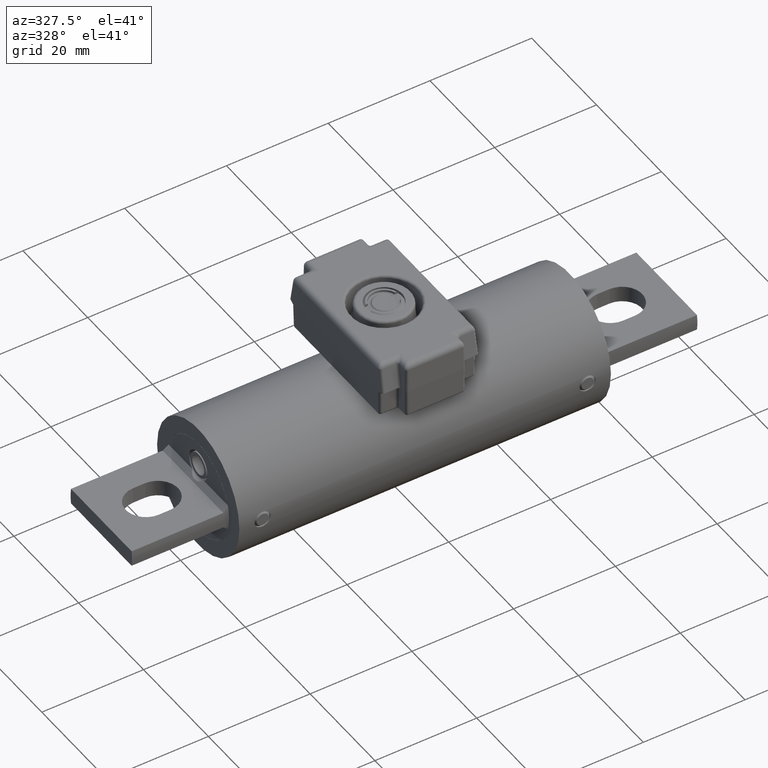
[diagram: clean part render]
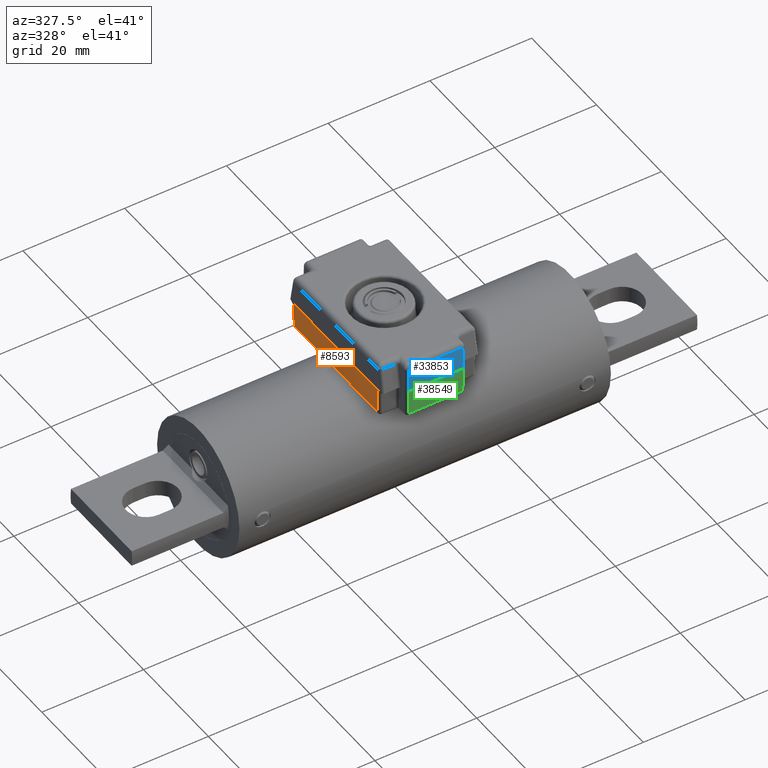
[diagram: same view with three faces highlighted in distinct colors, each labeled with its STEP entity id]
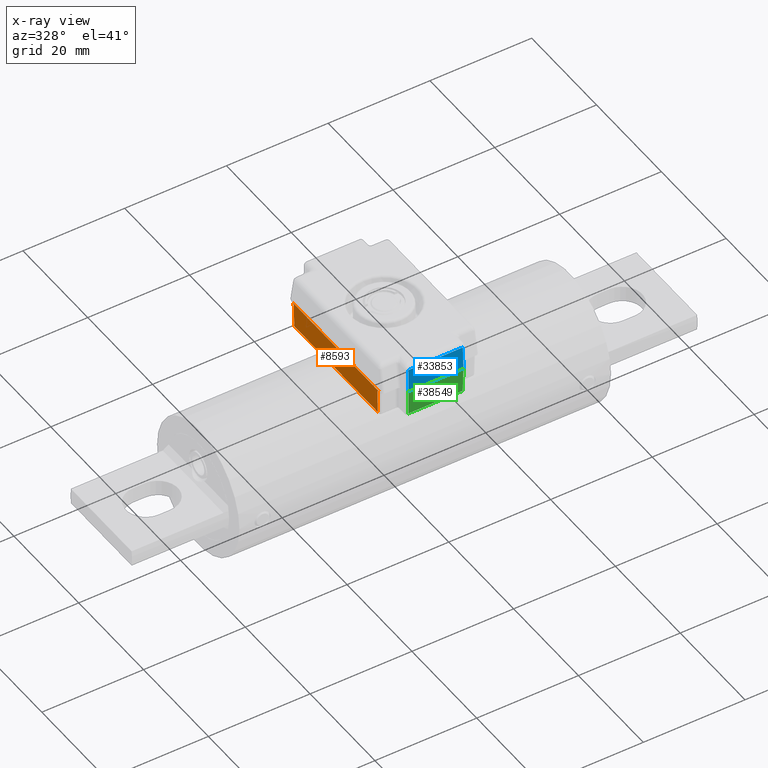
[diagram: x-ray of the same camera — body ghosted, the three highlighted faces saturated]
A machine part, auxiliary view with three faces highlighted in distinct colors.
The next image is the same camera in x-ray (body ghosted, the three faces saturated) — at least one of them is partly hidden behind the body in this view.
Their STEP definitions:

[orange] entity #8593 — the highlighted planar face has unit normal (-0.9998, 0, -0.0175).
#886 = EDGE_LOOP ( 'NONE', ( #25559, #22007, #8837, #33350, #26695, #16284 ) ) ;
#974 = DIRECTION ( 'NONE',  ( 0.01745240643728355000, 5.064918043239283100E-017, -0.9998476951563912700 ) ) ;
#1971 = DIRECTION ( 'NONE',  ( -0.01744974916068272500, -0.01744974916068281500, 0.9996954598818874600 ) ) ;
#2559 = CARTESIAN_POINT ( 'NONE',  ( -0.3665224329109190200, 0.2660506057940360000, 0.2569654875597571800 ) ) ;
#2830 = CARTESIAN_POINT ( 'NONE',  ( -0.3711076247461754800, -0.5062676622022337400, 0.5196509518712542100 ) ) ;
#2939 = LINE ( 'NONE', #2830, #26684 ) ;
#3385 = VECTOR ( 'NONE', #18103, 39.37007874015748900 ) ;
#3974 = VERTEX_POINT ( 'NONE', #37888 ) ;
#4573 = VERTEX_POINT ( 'NONE', #29633 ) ;
#5062 = CARTESIAN_POINT ( 'NONE',  ( -0.3741833255768810000, -0.5096863716737531900, 0.6958577344500682700 ) ) ;
#5782 = LINE ( 'NONE', #12609, #22310 ) ;
#5899 = DIRECTION ( 'NONE',  ( -4.064165105744147800E-016, -1.000000000000000000, -5.550164946788219100E-017 ) ) ;
#8593 = ADVANCED_FACE ( 'NONE', ( #17112 ), #37894, .T. ) ;
#8837 = ORIENTED_EDGE ( 'NONE', *, *, #20443, .T. ) ;
#11049 = EDGE_CURVE ( 'NONE', #4573, #17977, #12136, .T. ) ;
#11390 = EDGE_CURVE ( 'NONE', #24192, #38937, #11565, .T. ) ;
#11565 = LINE ( 'NONE', #2559, #3385 ) ;
#12136 = LINE ( 'NONE', #39785, #35929 ) ;
#12609 = CARTESIAN_POINT ( 'NONE',  ( -0.3744999999999996700, 0.5300000000000001400, 0.7139999999999999700 ) ) ;
#13678 = CARTESIAN_POINT ( 'NONE',  ( -0.3745000000000000600, -0.5255563905649274200, 0.7139999999999999700 ) ) ;
#14436 = CARTESIAN_POINT ( 'NONE',  ( -0.3743416625967335200, 0.5098447086936062100, 0.7049288562421708300 ) ) ;
#15133 = CARTESIAN_POINT ( 'NONE',  ( -0.3745060889473976200, 0.5100091350442702600, 0.7143488355628013800 ) ) ;
#15610 = EDGE_CURVE ( 'NONE', #4573, #38937, #5782, .T. ) ;
#15729 = AXIS2_PLACEMENT_3D ( 'NONE', #38149, #19497, #974 ) ;
#16284 = ORIENTED_EDGE ( 'NONE', *, *, #11390, .T. ) ;
#17112 = FACE_OUTER_BOUND ( 'NONE', #886, .T. ) ;
#17977 = VERTEX_POINT ( 'NONE', #14436 ) ;
#18103 = DIRECTION ( 'NONE',  ( -0.008727200095795303200, -0.8659924231676986400, 0.4999809586320516100 ) ) ;
#19497 = DIRECTION ( 'NONE',  ( -0.9998476951563912700, 4.073232487157848200E-016, -0.01745240643728355000 ) ) ;
#19585 = LINE ( 'NONE', #5062, #25930 ) ;
#20443 = EDGE_CURVE ( 'NONE', #17977, #21078, #40006, .T. ) ;
#21078 = VERTEX_POINT ( 'NONE', #24015 ) ;
#21129 = DIRECTION ( 'NONE',  ( 0.008727200095794565900, -0.8659924231676997500, -0.4999809586320498900 ) ) ;
#21529 = CARTESIAN_POINT ( 'NONE',  ( -0.3743416625967339000, -0.5098447086936061000, 0.7049288562421708300 ) ) ;
#22007 = ORIENTED_EDGE ( 'NONE', *, *, #11049, .T. ) ;
#22310 = VECTOR ( 'NONE', #34203, 39.37007874015748100 ) ;
#22820 = EDGE_CURVE ( 'NONE', #3974, #24192, #19585, .T. ) ;
#24015 = CARTESIAN_POINT ( 'NONE',  ( -0.3711076247461750900, 0.5066106708430477800, 0.5196509518712543200 ) ) ;
#24192 = VERTEX_POINT ( 'NONE', #21529 ) ;
#25559 = ORIENTED_EDGE ( 'NONE', *, *, #15610, .F. ) ;
#25711 = EDGE_CURVE ( 'NONE', #21078, #3974, #2939, .T. ) ;
#25930 = VECTOR ( 'NONE', #1971, 39.37007874015748900 ) ;
#26684 = VECTOR ( 'NONE', #5899, 39.37007874015748100 ) ;
#26695 = ORIENTED_EDGE ( 'NONE', *, *, #22820, .T. ) ;
#29633 = CARTESIAN_POINT ( 'NONE',  ( -0.3744999999999996700, 0.5255563905649275300, 0.7139999999999999700 ) ) ;
#31733 = VECTOR ( 'NONE', #36887, 39.37007874015748900 ) ;
#33350 = ORIENTED_EDGE ( 'NONE', *, *, #25711, .T. ) ;
#34203 = DIRECTION ( 'NONE',  ( -4.064165105744147300E-016, -1.000000000000000000, -5.550164946788219100E-017 ) ) ;
#35929 = VECTOR ( 'NONE', #21129, 39.37007874015748900 ) ;
#36887 = DIRECTION ( 'NONE',  ( 0.01744974916068271400, -0.01744974916068264800, -0.9996954598818874600 ) ) ;
#37888 = CARTESIAN_POINT ( 'NONE',  ( -0.3711076247461754800, -0.5066106708430476700, 0.5196509518712542100 ) ) ;
#37894 = PLANE ( 'NONE',  #15729 ) ;
#38149 = CARTESIAN_POINT ( 'NONE',  ( -0.3744999999999996700, 0.5300000000000001400, 0.7139999999999999700 ) ) ;
#38937 = VERTEX_POINT ( 'NONE', #13678 ) ;
#39785 = CARTESIAN_POINT ( 'NONE',  ( -0.3745335834188513500, 0.5288888438088584800, 0.7159239927774453400 ) ) ;
#40006 = LINE ( 'NONE', #15133, #31733 ) ;

[blue] entity #33853 — the highlighted planar face has unit normal (0, -0.9998, 0.0175).
#2886 = ORIENTED_EDGE ( 'NONE', *, *, #14783, .T. ) ;
#2912 = VERTEX_POINT ( 'NONE', #3387 ) ;
#3387 = CARTESIAN_POINT ( 'NONE',  ( 0.2103489490942925000, -0.6268459029974199300, 0.8946980962574911900 ) ) ;
#3866 = VERTEX_POINT ( 'NONE', #17609 ) ;
#7024 = DIRECTION ( 'NONE',  ( -0.01744974916068272100, -0.01744974916068266600, -0.9996954598818874600 ) ) ;
#7520 = EDGE_CURVE ( 'NONE', #2912, #30694, #24718, .T. ) ;
#11934 = CARTESIAN_POINT ( 'NONE',  ( -0.2324999999999997300, -0.6299999999999997800, 0.7139999999999999700 ) ) ;
#12514 = CARTESIAN_POINT ( 'NONE',  ( -0.2086629318126640700, -0.6268459029974200500, 0.8946980962574911900 ) ) ;
#13490 = ORIENTED_EDGE ( 'NONE', *, *, #32296, .T. ) ;
#14783 = EDGE_CURVE ( 'NONE', #22739, #2912, #23438, .T. ) ;
#16366 = VECTOR ( 'NONE', #31261, 39.37007874015748100 ) ;
#16471 = DIRECTION ( 'NONE',  ( 1.555861134850301900E-017, -0.9998476951563912700, 0.01745240643728349400 ) ) ;
#17477 = EDGE_LOOP ( 'NONE', ( #2886, #32779, #13490, #31459 ) ) ;
#17609 = CARTESIAN_POINT ( 'NONE',  ( -0.2125030460968719300, -0.6299999999999997800, 0.7139999999999999700 ) ) ;
#20247 = CARTESIAN_POINT ( 'NONE',  ( 0.2133672409587411600, -0.6298641948618685100, 0.7217802711527964200 ) ) ;
#20381 = CARTESIAN_POINT ( 'NONE',  ( 0.2135030460968723500, -0.6299999999999996700, 0.7139999999999999700 ) ) ;
#20540 = LINE ( 'NONE', #31911, #36123 ) ;
#22739 = VERTEX_POINT ( 'NONE', #20381 ) ;
#23015 = LINE ( 'NONE', #11934, #39570 ) ;
#23438 = LINE ( 'NONE', #20247, #31738 ) ;
#24718 = LINE ( 'NONE', #12514, #16366 ) ;
#25307 = FACE_OUTER_BOUND ( 'NONE', #17477, .T. ) ;
#29092 = DIRECTION ( 'NONE',  ( -0.01744974916068281500, 0.01744974916068266200, 0.9996954598818874600 ) ) ;
#30322 = CARTESIAN_POINT ( 'NONE',  ( -0.2093489490942921100, -0.6268459029974200500, 0.8946980962574911900 ) ) ;
#30694 = VERTEX_POINT ( 'NONE', #30322 ) ;
#31261 = DIRECTION ( 'NONE',  ( -1.000000000000000000, -1.556098136133570800E-017, -1.384962516783418500E-030 ) ) ;
#31459 = ORIENTED_EDGE ( 'NONE', *, *, #39143, .T. ) ;
#31738 = VECTOR ( 'NONE', #29092, 39.37007874015748900 ) ;
#31911 = CARTESIAN_POINT ( 'NONE',  ( -0.2125091350442699100, -0.6300060889473978500, 0.7136511644371985600 ) ) ;
#32296 = EDGE_CURVE ( 'NONE', #30694, #3866, #20540, .T. ) ;
#32779 = ORIENTED_EDGE ( 'NONE', *, *, #7520, .T. ) ;
#33643 = DIRECTION ( 'NONE',  ( 1.000000000000000000, 1.556098136133565800E-017, 1.384449094911564700E-030 ) ) ;
#33853 = ADVANCED_FACE ( 'NONE', ( #25307 ), #34695, .T. ) ;
#34695 = PLANE ( 'NONE',  #39612 ) ;
#35089 = CARTESIAN_POINT ( 'NONE',  ( -0.2324999999999997300, -0.6299999999999997800, 0.7139999999999999700 ) ) ;
#36123 = VECTOR ( 'NONE', #7024, 39.37007874015748900 ) ;
#38229 = DIRECTION ( 'NONE',  ( -4.844015865445743100E-018, -0.01745240643728349400, -0.9998476951563912700 ) ) ;
#39143 = EDGE_CURVE ( 'NONE', #3866, #22739, #23015, .T. ) ;
#39570 = VECTOR ( 'NONE', #33643, 39.37007874015748100 ) ;
#39612 = AXIS2_PLACEMENT_3D ( 'NONE', #35089, #16471, #38229 ) ;

[green] entity #38549 — the highlighted planar face has unit normal (0, -0.9998, -0.0175).
#1256 = VERTEX_POINT ( 'NONE', #10184 ) ;
#2391 = EDGE_CURVE ( 'NONE', #13362, #1256, #40286, .T. ) ;
#3866 = VERTEX_POINT ( 'NONE', #17609 ) ;
#5852 = ORIENTED_EDGE ( 'NONE', *, *, #39143, .F. ) ;
#6925 = DIRECTION ( 'NONE',  ( 1.000000000000000000, 1.556098136133570800E-017, 1.383935673039711000E-030 ) ) ;
#7158 = VECTOR ( 'NONE', #6925, 39.37007874015748100 ) ;
#7505 = AXIS2_PLACEMENT_3D ( 'NONE', #32787, #14142, #35893 ) ;
#10184 = CARTESIAN_POINT ( 'NONE',  ( 0.2101106708430478500, -0.6266076247461751500, 0.5196509518712542100 ) ) ;
#11934 = CARTESIAN_POINT ( 'NONE',  ( -0.2324999999999997300, -0.6299999999999997800, 0.7139999999999999700 ) ) ;
#11938 = VECTOR ( 'NONE', #26458, 39.37007874015748900 ) ;
#13362 = VERTEX_POINT ( 'NONE', #23153 ) ;
#13689 = ORIENTED_EDGE ( 'NONE', *, *, #40210, .T. ) ;
#14142 = DIRECTION ( 'NONE',  ( 1.555861134850307100E-017, -0.9998476951563912700, -0.01745240643728360500 ) ) ;
#14989 = ORIENTED_EDGE ( 'NONE', *, *, #19993, .T. ) ;
#17609 = CARTESIAN_POINT ( 'NONE',  ( -0.2125030460968719300, -0.6299999999999997800, 0.7139999999999999700 ) ) ;
#19993 = EDGE_CURVE ( 'NONE', #3866, #13362, #35739, .T. ) ;
#20381 = CARTESIAN_POINT ( 'NONE',  ( 0.2135030460968723500, -0.6299999999999996700, 0.7139999999999999700 ) ) ;
#20871 = CARTESIAN_POINT ( 'NONE',  ( 0.2133672409587412100, -0.6298641948618685100, 0.7062197288472035200 ) ) ;
#22739 = VERTEX_POINT ( 'NONE', #20381 ) ;
#23015 = LINE ( 'NONE', #11934, #39570 ) ;
#23133 = FACE_OUTER_BOUND ( 'NONE', #33102, .T. ) ;
#23153 = CARTESIAN_POINT ( 'NONE',  ( -0.2091106708430473500, -0.6266076247461753700, 0.5196509518712542100 ) ) ;
#26458 = DIRECTION ( 'NONE',  ( 0.01744974916068272100, 0.01744974916068277700, -0.9996954598818874600 ) ) ;
#27609 = LINE ( 'NONE', #20871, #34839 ) ;
#29692 = CARTESIAN_POINT ( 'NONE',  ( -0.2125091350442698800, -0.6300060889473978500, 0.7143488355628011500 ) ) ;
#32787 = CARTESIAN_POINT ( 'NONE',  ( -0.2324999999999997300, -0.6299999999999997800, 0.7139999999999999700 ) ) ;
#33102 = EDGE_LOOP ( 'NONE', ( #14989, #34180, #13689, #5852 ) ) ;
#33643 = DIRECTION ( 'NONE',  ( 1.000000000000000000, 1.556098136133565800E-017, 1.384449094911564700E-030 ) ) ;
#34180 = ORIENTED_EDGE ( 'NONE', *, *, #2391, .T. ) ;
#34491 = CARTESIAN_POINT ( 'NONE',  ( 0.2097676622022337800, -0.6266076247461751500, 0.5196509518712542100 ) ) ;
#34839 = VECTOR ( 'NONE', #36387, 39.37007874015748900 ) ;
#35739 = LINE ( 'NONE', #29692, #11938 ) ;
#35893 = DIRECTION ( 'NONE',  ( 4.844015865448504100E-018, 0.01745240643728360500, -0.9998476951563912700 ) ) ;
#36387 = DIRECTION ( 'NONE',  ( 0.01744974916068281500, -0.01744974916068277300, 0.9996954598818874600 ) ) ;
#38549 = ADVANCED_FACE ( 'NONE', ( #23133 ), #38884, .T. ) ;
#38884 = PLANE ( 'NONE',  #7505 ) ;
#39143 = EDGE_CURVE ( 'NONE', #3866, #22739, #23015, .T. ) ;
#39570 = VECTOR ( 'NONE', #33643, 39.37007874015748100 ) ;
#40210 = EDGE_CURVE ( 'NONE', #1256, #22739, #27609, .T. ) ;
#40286 = LINE ( 'NONE', #34491, #7158 ) ;